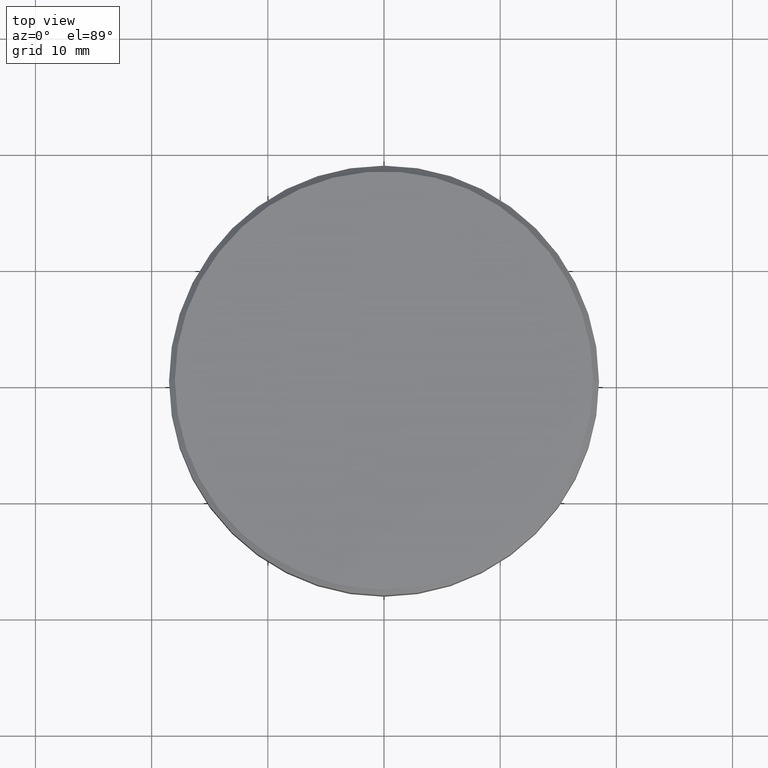
[diagram: clean part render]
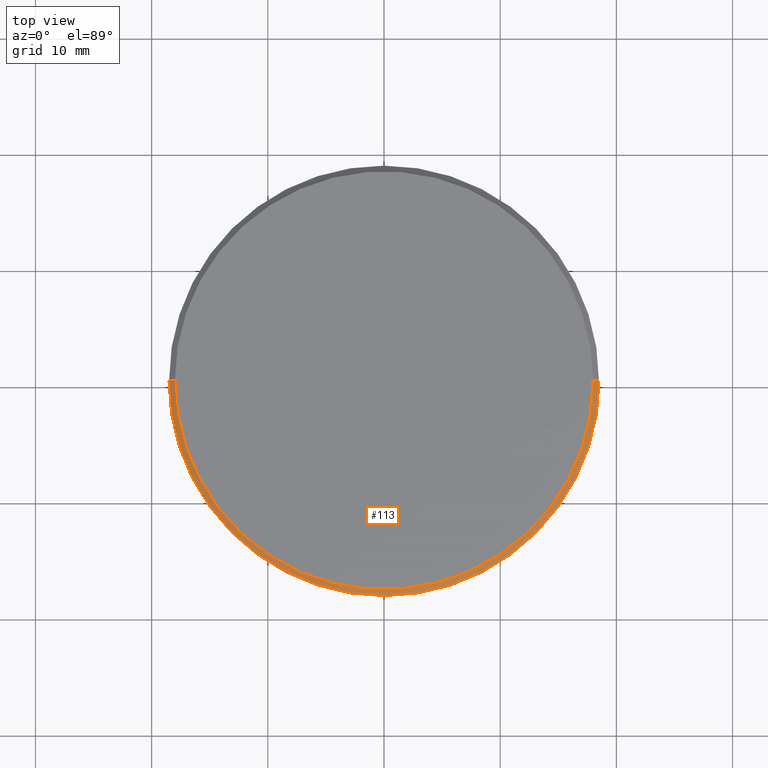
[diagram: same view with one face highlighted and labeled with its STEP entity id]
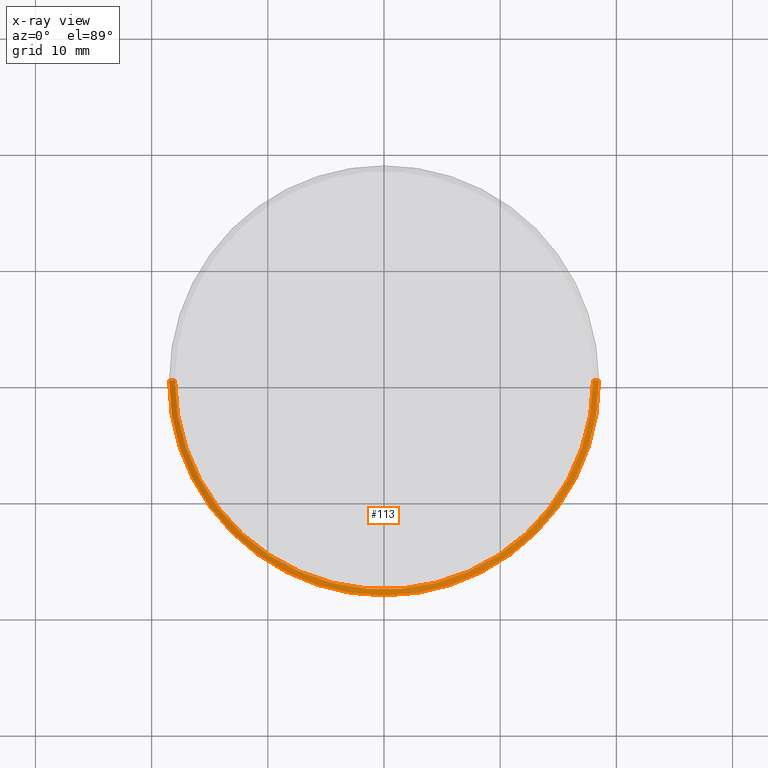
[diagram: x-ray of the same camera — body ghosted, the highlighted face saturated]
A machine part, top view. The second image highlights one B-rep face of the part: STEP entity #113.
The next image is the same camera in x-ray: the body ghosted, the highlighted face saturated — about 0% of this face is hidden behind the body in this view.
In plain terms, the highlighted conical surface has half-angle 45 deg.
Its self-contained STEP definition (entity closure, byte-faithful):
#19 = DIRECTION ( 'NONE',  ( -0.000000000000000000, -0.000000000000000000, 1.000000000000000000 ) ) ;
#28 = AXIS2_PLACEMENT_3D ( 'NONE', #157, #19, #212 ) ;
#38 = EDGE_LOOP ( 'NONE', ( #200, #274, #137, #301 ) ) ;
#41 = AXIS2_PLACEMENT_3D ( 'NONE', #322, #254, #390 ) ;
#71 = DIRECTION ( 'NONE',  ( -0.7071067811865549002, 0.000000000000000000, -0.7071067811865402453 ) ) ;
#86 = VERTEX_POINT ( 'NONE', #93 ) ;
#88 = LINE ( 'NONE', #165, #378 ) ;
#93 = CARTESIAN_POINT ( 'NONE',  ( 17.99999999999999645, 2.234980408443919215E-15, 0.000000000000000000 ) ) ;
#95 = DIRECTION ( 'NONE',  ( 0.7071067811865549002, 8.659560562355021605E-17, -0.7071067811865402453 ) ) ;
#100 = CARTESIAN_POINT ( 'NONE',  ( -18.50000000000000000, 2.265596578422603396E-15, -0.4999999999999936162 ) ) ;
#101 = LINE ( 'NONE', #228, #352 ) ;
#113 = ADVANCED_FACE ( 'NONE', ( #167 ), #325, .T. ) ;
#119 = EDGE_CURVE ( 'NONE', #121, #295, #101, .T. ) ;
#121 = VERTEX_POINT ( 'NONE', #303 ) ;
#137 = ORIENTED_EDGE ( 'NONE', *, *, #119, .T. ) ;
#157 = CARTESIAN_POINT ( 'NONE',  ( 0.000000000000000000, 0.000000000000000000, 0.000000000000000000 ) ) ;
#165 = CARTESIAN_POINT ( 'NONE',  ( 17.99999999999999645, 2.204364238465235033E-15, 0.000000000000000000 ) ) ;
#166 = EDGE_CURVE ( 'NONE', #121, #86, #172, .T. ) ;
#167 = FACE_OUTER_BOUND ( 'NONE', #38, .T. ) ;
#172 = CIRCLE ( 'NONE', #28, 17.99999999999999645 ) ;
#200 = ORIENTED_EDGE ( 'NONE', *, *, #239, .F. ) ;
#203 = AXIS2_PLACEMENT_3D ( 'NONE', #227, #219, #280 ) ;
#212 = DIRECTION ( 'NONE',  ( 1.000000000000000000, 0.000000000000000000, 0.000000000000000000 ) ) ;
#219 = DIRECTION ( 'NONE',  ( 0.000000000000000000, 0.000000000000000000, -1.000000000000000000 ) ) ;
#227 = CARTESIAN_POINT ( 'NONE',  ( 0.000000000000000000, 0.000000000000000000, -0.4999999999999936162 ) ) ;
#228 = CARTESIAN_POINT ( 'NONE',  ( -17.99999999999999645, 0.000000000000000000, 0.000000000000000000 ) ) ;
#239 = EDGE_CURVE ( 'NONE', #86, #276, #88, .T. ) ;
#254 = DIRECTION ( 'NONE',  ( 0.000000000000000000, 0.000000000000000000, -1.000000000000000000 ) ) ;
#255 = EDGE_CURVE ( 'NONE', #276, #295, #328, .T. ) ;
#274 = ORIENTED_EDGE ( 'NONE', *, *, #166, .F. ) ;
#276 = VERTEX_POINT ( 'NONE', #314 ) ;
#280 = DIRECTION ( 'NONE',  ( 1.000000000000000000, 0.000000000000000000, 0.000000000000000000 ) ) ;
#295 = VERTEX_POINT ( 'NONE', #100 ) ;
#301 = ORIENTED_EDGE ( 'NONE', *, *, #255, .F. ) ;
#303 = CARTESIAN_POINT ( 'NONE',  ( -17.99999999999999645, 0.000000000000000000, 0.000000000000000000 ) ) ;
#314 = CARTESIAN_POINT ( 'NONE',  ( 18.50000000000000000, 0.000000000000000000, -0.4999999999999936162 ) ) ;
#322 = CARTESIAN_POINT ( 'NONE',  ( 0.000000000000000000, 0.000000000000000000, 0.000000000000000000 ) ) ;
#325 = CONICAL_SURFACE ( 'NONE', #41, 17.99999999999999645, 0.7853981633974587151 ) ;
#328 = CIRCLE ( 'NONE', #203, 18.50000000000000000 ) ;
#352 = VECTOR ( 'NONE', #71, 1000.000000000000114 ) ;
#378 = VECTOR ( 'NONE', #95, 1000.000000000000114 ) ;
#390 = DIRECTION ( 'NONE',  ( -1.000000000000000000, 0.000000000000000000, 0.000000000000000000 ) ) ;